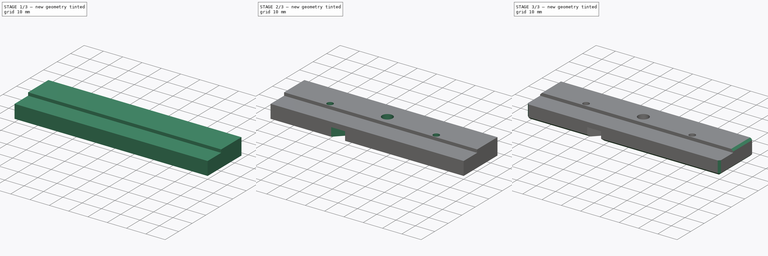
[diagram: build sequence overview — one tinted view per stage of 3, left to right]
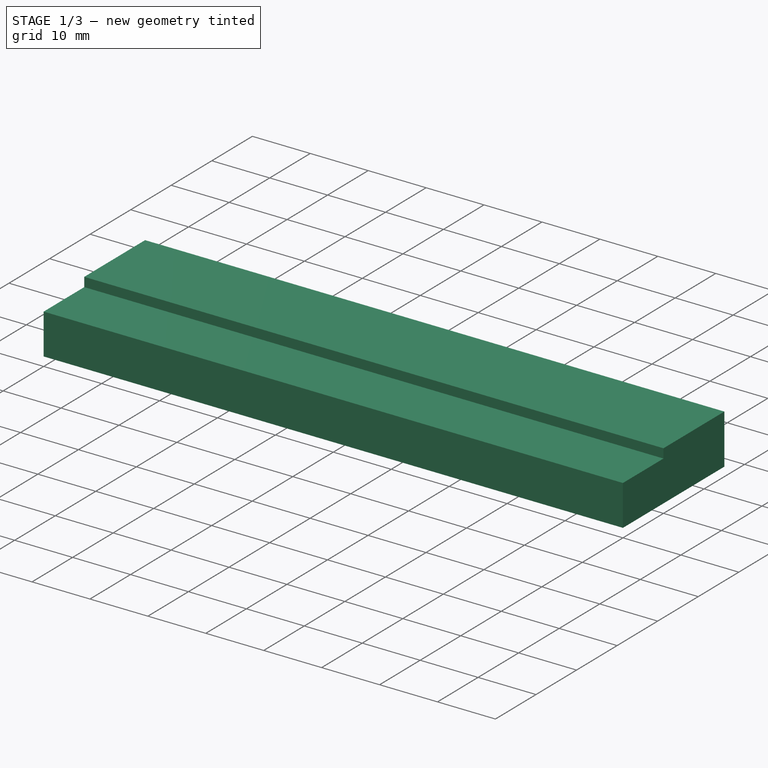
[diagram: stage 1 of 3 — iso view after this stage's code; geometry added in this stage tinted green]
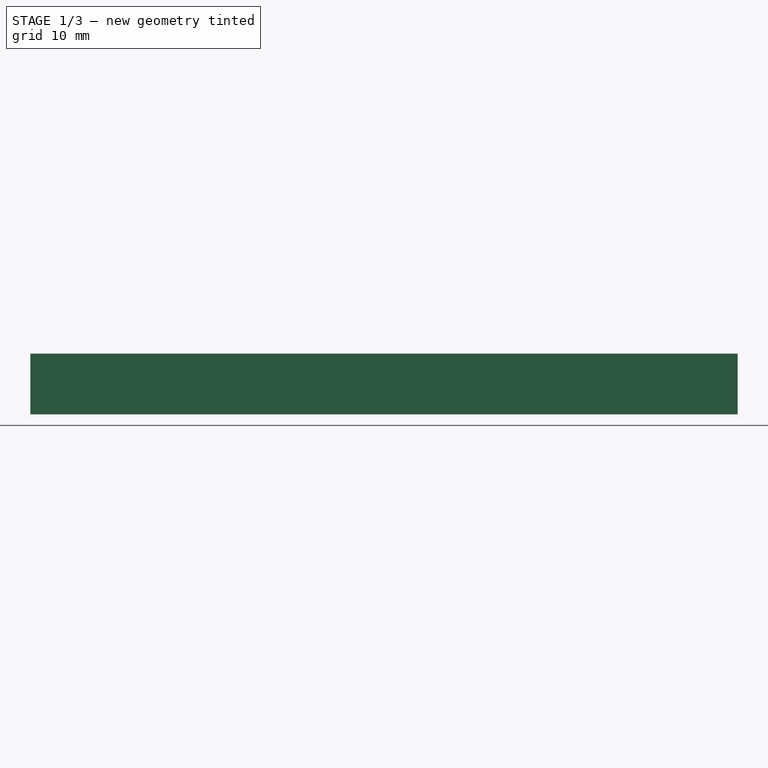
[diagram: stage 1 of 3 — front view after this stage's code; geometry added in this stage tinted green]
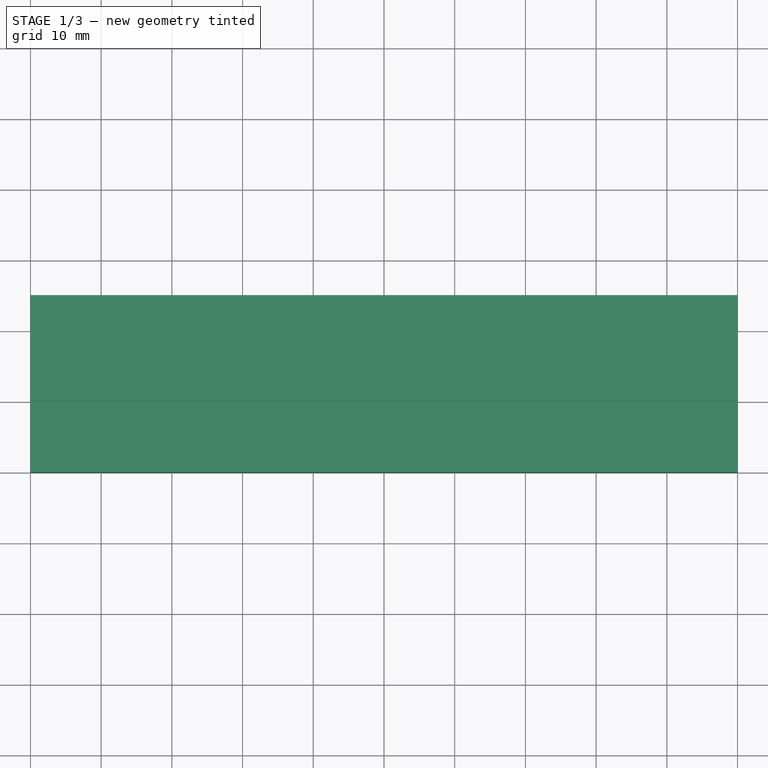
[diagram: stage 1 of 3 — top view after this stage's code; geometry added in this stage tinted green]
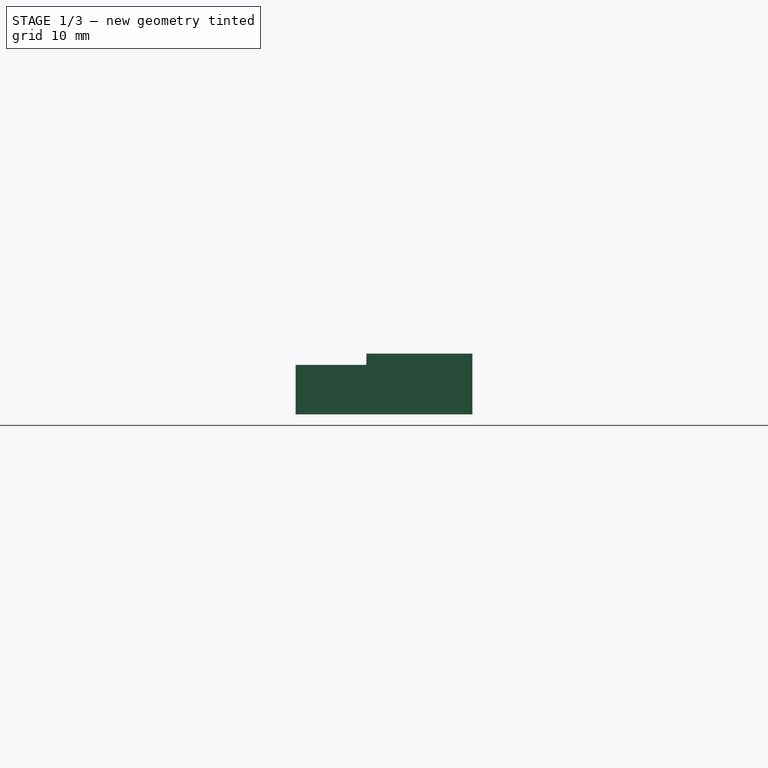
[diagram: stage 1 of 3 — right view after this stage's code; geometry added in this stage tinted green]
FCSTD DOCUMENT  (FreeCAD 0.16R6698 (Git))
Label: pnp board mount slide top
License: All rights reserved
LicenseURL: http://en.wikipedia.org/wiki/All_rights_reserved
objects: Sketcher::SketchObject×6, PartDesign::Pocket×5, PartDesign::Pad×1, PartDesign::Chamfer×1
note: 19 computed .brp shape members not serialized (recipe doc carries the construction recipe); baked Part::Feature solids carry a one-line shape summary decoded from their .brp

FEATURE [Sketcher::SketchObject] Sketch
  sketch-geometry (4):
    g0: LineSegment StartX=0 StartY=25 StartZ=0 EndX=100 EndY=25 EndZ=0
    g1: LineSegment StartX=100 StartY=25 StartZ=0 EndX=100 EndY=0 EndZ=0
    g2: LineSegment StartX=100 StartY=0 StartZ=0 EndX=0 EndY=0 EndZ=0
    g3: LineSegment StartX=0 StartY=0 StartZ=0 EndX=0 EndY=25 EndZ=0
  constraints (11):
    c: Coincident(g0,g1)
    c: Coincident(g1,g2)
    c: Coincident(g2,g3)
    c: Coincident(g3,g0)
    c: Horizontal(g0)
    c: Horizontal(g2)
    c: Vertical(g1)
    c: Vertical(g3)
    c: Coincident(g2,g-1)
    c: DistanceY(g1,g1) = 25
    c: DistanceX(g0,g0) = 100
FEATURE [PartDesign::Pad] Pad
  Length = 8.6
  Length2 = 100
  Sketch = -> Sketch
  Type = 0
FEATURE [Sketcher::SketchObject] Sketch001
  Placement = pos=(0,0,8.6) rot=(0,0,1;0rad)
  Support = -> Pad [Face6]
  sketch-geometry (4):
    g0: LineSegment StartX=-6.18261 StartY=10 StartZ=0 EndX=105 EndY=10 EndZ=0
    g1: LineSegment StartX=105 StartY=10 StartZ=0 EndX=105 EndY=-3.53542 EndZ=0
    g2: LineSegment StartX=105 StartY=-3.53542 StartZ=0 EndX=-6.18261 EndY=-3.53542 EndZ=0
    g3: LineSegment StartX=-6.18261 StartY=-3.53542 StartZ=0 EndX=-6.18261 EndY=10 EndZ=0
  constraints (8):
    c: Coincident(g0,g1)
    c: Coincident(g1,g2)
    c: Coincident(g2,g3)
    c: Coincident(g3,g0)
    c: Horizontal(g0)
    c: Horizontal(g2)
    c: Vertical(g1)
    c: Vertical(g3)
FEATURE [PartDesign::Pocket] Pocket
  Length = 1.6
  Sketch = -> Sketch001
  Type = 0
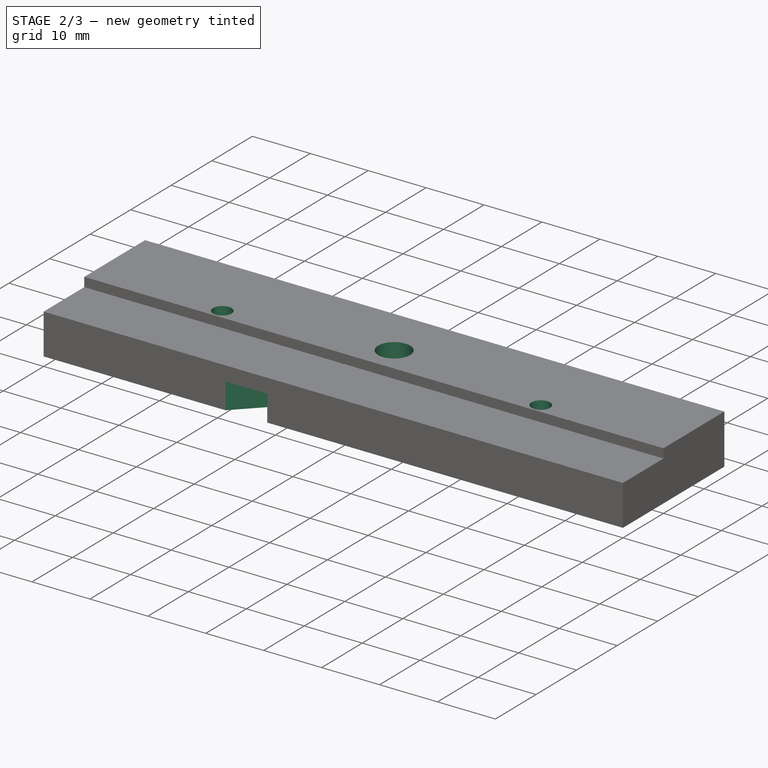
[diagram: stage 2 of 3 — iso view after this stage's code; geometry added in this stage tinted green]
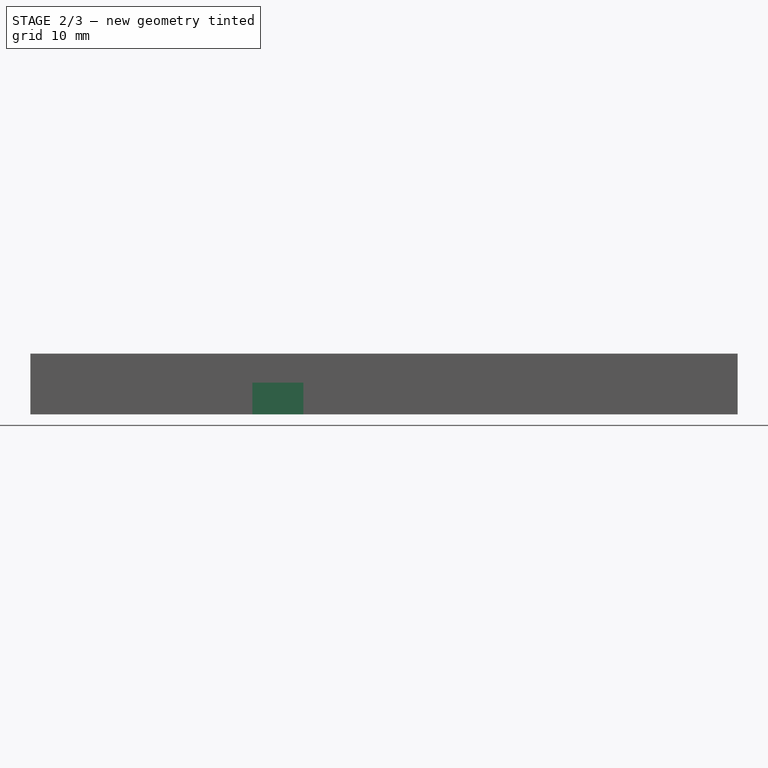
[diagram: stage 2 of 3 — front view after this stage's code; geometry added in this stage tinted green]
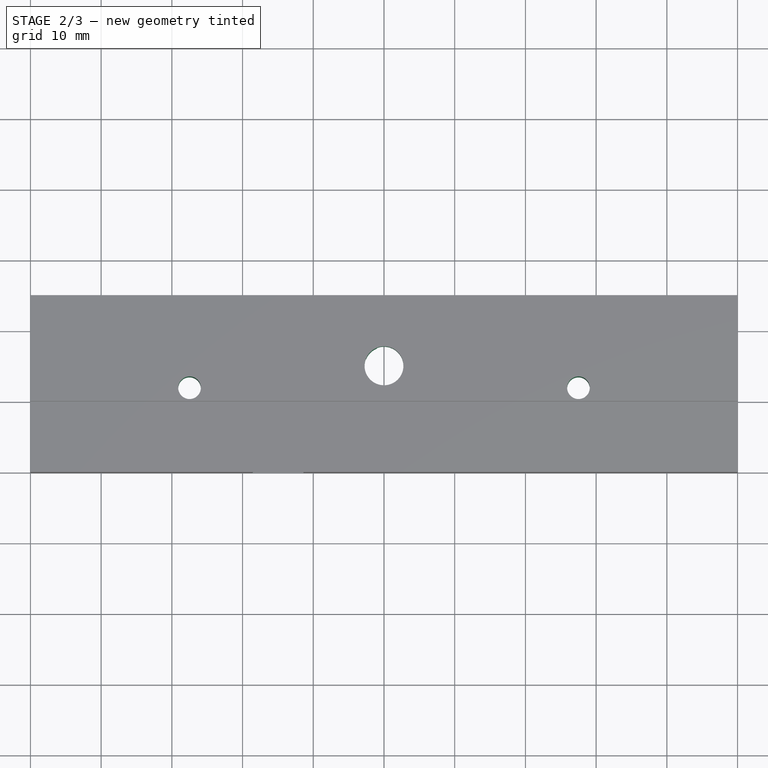
[diagram: stage 2 of 3 — top view after this stage's code; geometry added in this stage tinted green]
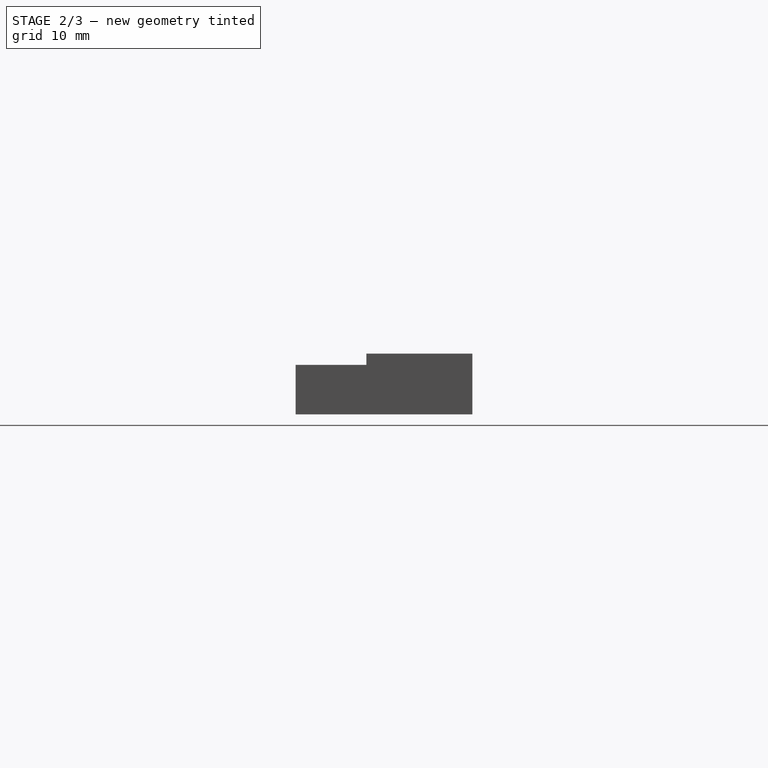
[diagram: stage 2 of 3 — right view after this stage's code; geometry added in this stage tinted green]
FEATURE [Sketcher::SketchObject] Sketch002
  Placement = pos=(0,0,8.6) rot=(0,0,1;0rad)
  Support = -> Pocket [Face5]
  sketch-geometry (2):
    g0: Circle CenterX=50 CenterY=15 CenterZ=0 NormalX=0 NormalY=0 NormalZ=1 Radius=2.75
    g1: Circle [constr] CenterX=50 CenterY=15 CenterZ=0 NormalX=0 NormalY=0 NormalZ=1 Radius=4.25
  constraints (4):
    c: Radius(g0) = 2.75
    c: DistanceX(g-1,g0) = 50
    c: Coincident(g1,g0)
    c: Radius(g1) = 4.25
FEATURE [PartDesign::Pocket] Pocket001
  Length = 5
  Sketch = -> Sketch002
  Type = 1
FEATURE [Sketcher::SketchObject] Sketch003
  Placement = pos=(0,0,0) rot=(1,0,0;3.14159rad)
  Support = -> Pocket001 [Face4]
  sketch-geometry (4):
    g0: ArcOfCircle CenterX=62.5 CenterY=-27.5 CenterZ=0 NormalX=0 NormalY=0 NormalZ=1 Radius=2.55 StartAngle=3.92699 EndAngle=7.06858
    g1: ArcOfCircle CenterX=32.5 CenterY=2.5 CenterZ=0 NormalX=0 NormalY=0 NormalZ=1 Radius=2.55 StartAngle=0.785398 EndAngle=3.92699
    g2: LineSegment StartX=64.3031 StartY=-25.6969 StartZ=0 EndX=34.3031 EndY=4.30312 EndZ=0
    g3: LineSegment StartX=60.6969 StartY=-29.3031 StartZ=0 EndX=30.6969 EndY=0.696878 EndZ=0
  constraints (7):
    c: Tangent(g0,g3) = 1.5708
    c: Tangent(g0,g2) = -1.5708
    c: Tangent(g2,g1) = -1.5708
    c: Tangent(g3,g1) = 1.5708
    c: Equal(g0,g1)
    c: Radius(g1) = 2.55
    c: Angle(g2) = 2.35619
FEATURE [PartDesign::Pocket] Pocket002
  Length = 4.5
  Sketch = -> Sketch003
  Type = 0
FEATURE [Sketcher::SketchObject] Sketch004
  Placement = pos=(0,0,8.6) rot=(0,0,1;0rad)
  Support = -> Pocket002 [Face8]
  sketch-geometry (4):
    g0: Circle CenterX=22.5 CenterY=11.9 CenterZ=0 NormalX=0 NormalY=0 NormalZ=1 Radius=1.6
    g1: Circle [constr] CenterX=22.5 CenterY=11.9 CenterZ=0 NormalX=0 NormalY=0 NormalZ=1 Radius=2.75886
    g2: Circle CenterX=77.5 CenterY=11.9 CenterZ=0 NormalX=0 NormalY=0 NormalZ=1 Radius=1.6
    g3: LineSegment [constr] StartX=50 StartY=27.5 StartZ=0 EndX=50 EndY=-1.88044 EndZ=0
  constraints (6):
    c: Radius(g0) = 1.6
    c: Coincident(g1,g0)
    c: Radius(g2) = 1.6
    c: DistanceY(g-1,g0) = 11.9
    c: DistanceY(g-1,g2) = 11.9
    c: Vertical(g3)
FEATURE [PartDesign::Pocket] Pocket003
  Length = 5
  Sketch = -> Sketch004
  Type = 1
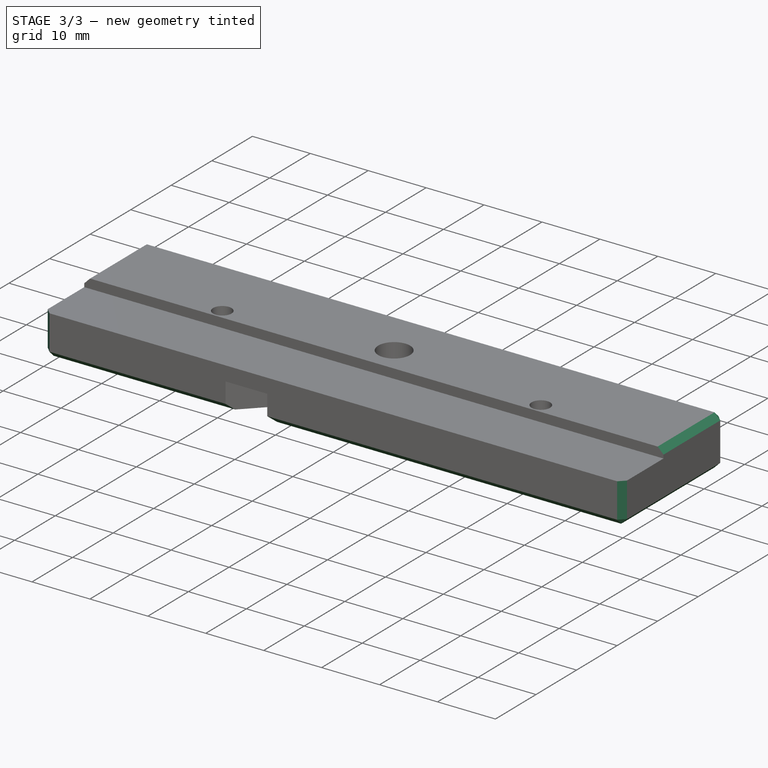
[diagram: stage 3 of 3 — iso view after this stage's code; geometry added in this stage tinted green]
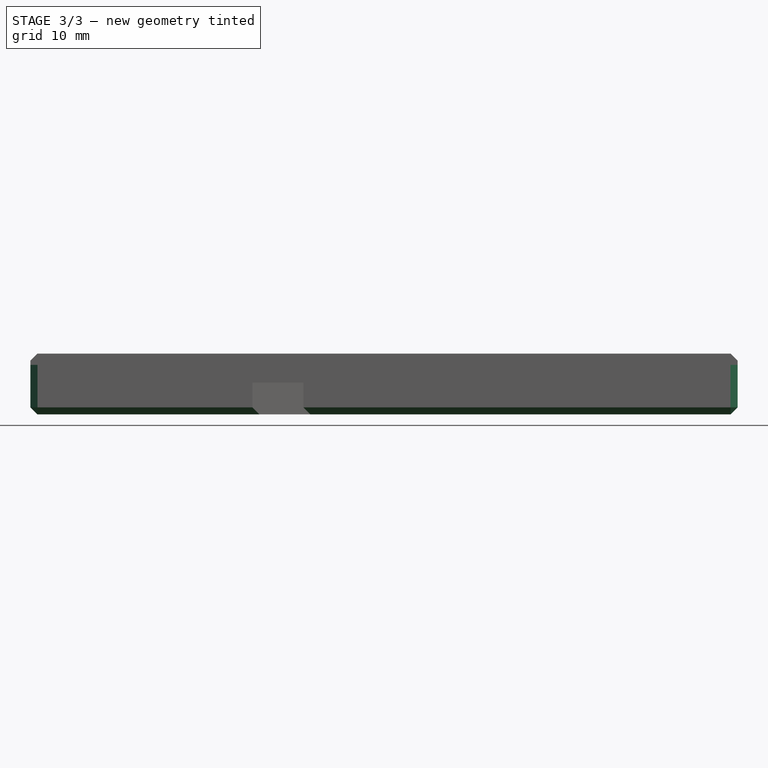
[diagram: stage 3 of 3 — front view after this stage's code; geometry added in this stage tinted green]
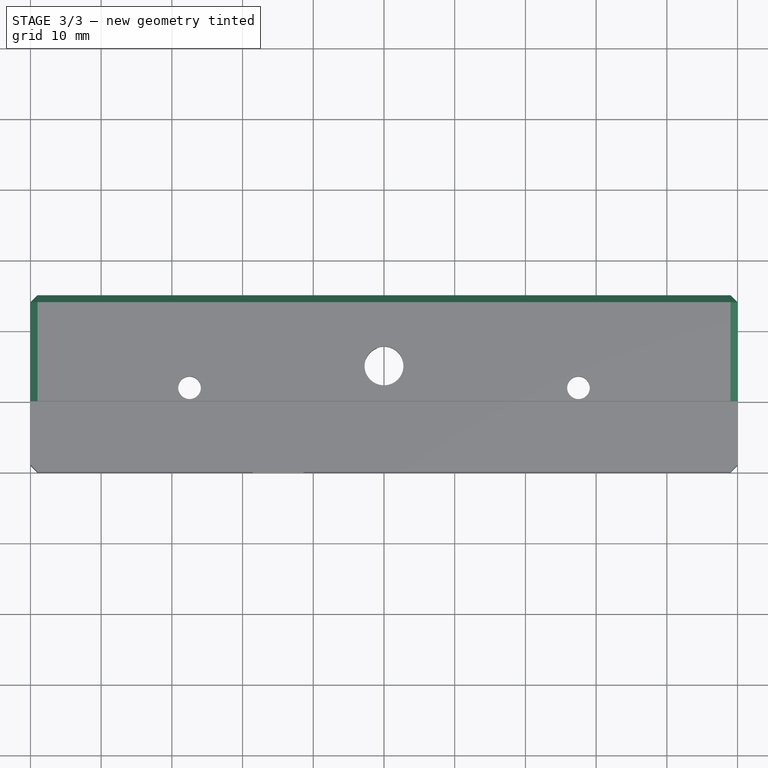
[diagram: stage 3 of 3 — top view after this stage's code; geometry added in this stage tinted green]
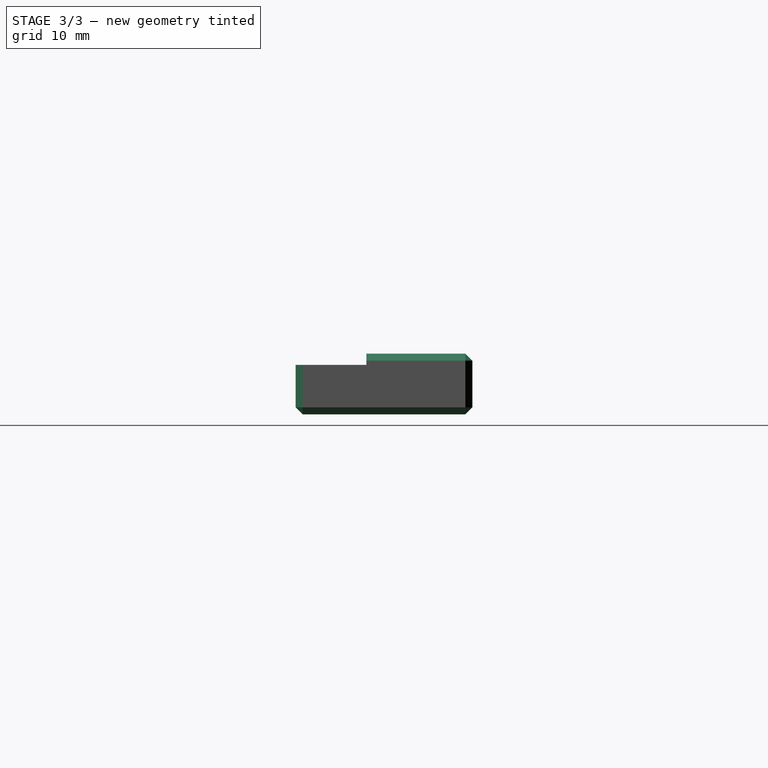
[diagram: stage 3 of 3 — right view after this stage's code; geometry added in this stage tinted green]
FEATURE [Sketcher::SketchObject] Sketch005
  ExternalGeometry = -> [Pocket003]
  Placement = pos=(0,0,0) rot=(1,0,0;3.14159rad)
  Support = -> Pocket003 [Face2]
  sketch-geometry (14):
    g0: LineSegment StartX=25.5149 StartY=-10.7322 StartZ=0 EndX=22.9961 EndY=-8.70513 EndZ=0
    g1: LineSegment StartX=22.9961 StartY=-8.70513 StartZ=0 EndX=19.9812 EndY=-9.8729 EndZ=0
    g2: LineSegment StartX=19.9812 StartY=-9.8729 StartZ=0 EndX=19.4851 EndY=-13.0678 EndZ=0
    g3: LineSegment StartX=19.4851 StartY=-13.0678 StartZ=0 EndX=22.0039 EndY=-15.0949 EndZ=0
    g4: LineSegment StartX=22.0039 StartY=-15.0949 StartZ=0 EndX=25.0188 EndY=-13.9271 EndZ=0
    g5: LineSegment StartX=25.0188 StartY=-13.9271 StartZ=0 EndX=25.5149 EndY=-10.7322 EndZ=0
    g6: Circle [constr] CenterX=22.5 CenterY=-11.9 CenterZ=0 NormalX=0 NormalY=0 NormalZ=1 Radius=3.23316
    g7: LineSegment StartX=80.1717 StartY=-13.7693 StartZ=0 EndX=80.4715 EndY=-10.5501 EndZ=0
    g8: LineSegment StartX=80.4715 StartY=-10.5501 StartZ=0 EndX=77.8335 EndY=-8.68077 EndZ=0
    g9: LineSegment StartX=77.8335 StartY=-8.68077 StartZ=0 EndX=74.8956 EndY=-10.0307 EndZ=0
    g10: LineSegment StartX=74.8956 StartY=-10.0307 StartZ=0 EndX=74.5958 EndY=-13.2499 EndZ=0
    g11: LineSegment StartX=74.5958 StartY=-13.2499 StartZ=0 EndX=77.2338 EndY=-15.1192 EndZ=0
    g12: LineSegment StartX=77.2338 StartY=-15.1192 StartZ=0 EndX=80.1717 EndY=-13.7693 EndZ=0
    g13: Circle [constr] CenterX=77.5337 CenterY=-11.9 CenterZ=0 NormalX=0 NormalY=0 NormalZ=1 Radius=3.23316
  constraints (30):
    c: Coincident(g0,g1)
    c: Coincident(g1,g2)
    c: Coincident(g2,g3)
    c: Coincident(g3,g4)
    c: Coincident(g4,g5)
    c: Coincident(g5,g0)
    c: Equal(g0, g1-g5) x5
    c: PointOnObject(g0,g6)
    c: PointOnObject(g1,g6)
    c: PointOnObject(g2,g6)
    c: PointOnObject(g3,g6)
    c: PointOnObject(g4,g6)
    c: PointOnObject(g5,g6)
    c: Coincident(g6,g-3)
    c: Distance(g1,g0) = 5.6
    c: Coincident(g7,g8)
    c: Coincident(g8,g9)
    c: Coincident(g9,g10)
    c: Coincident(g10,g11)
    c: Coincident(g11,g12)
    c: Coincident(g12,g7)
    c: Equal(g7, g8-g12) x5
    c: PointOnObject(g7,g13)
    c: PointOnObject(g8,g13)
    c: PointOnObject(g9,g13)
    c: PointOnObject(g10,g13)
    c: PointOnObject(g11,g13)
    c: PointOnObject(g12,g13)
    c: DistanceY(g13,g-1) = 11.9
    c: Distance(g9,g7) = 5.6
FEATURE [PartDesign::Pocket] Pocket004
  Length = 5
  Sketch = -> Sketch005
  Type = 0
FEATURE [PartDesign::Chamfer] Chamfer
  Base = -> Pocket004 [Edge11,Edge9,Edge1,Edge5,Edge29,Edge27,Edge6,Edge7,Edge40,Edge37,Edge48,Edge41,Edge8]
  Size = 1
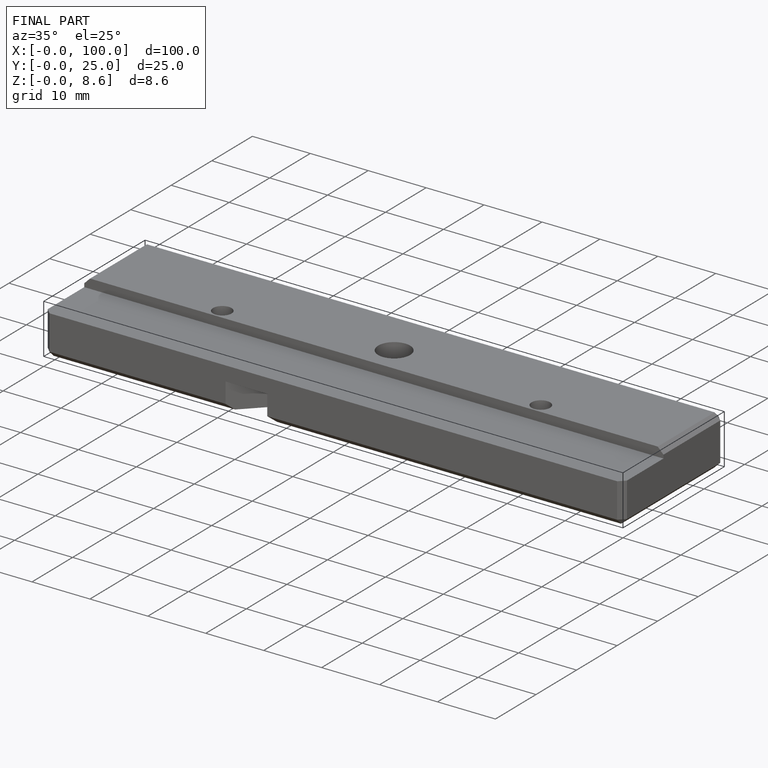
[diagram: finished part — iso view with bounding-box wireframe]
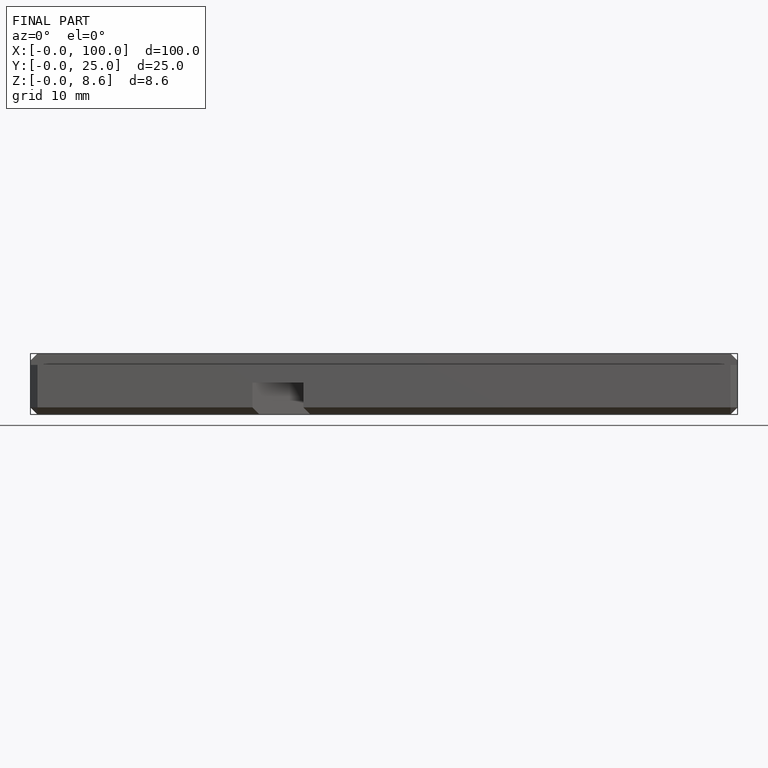
[diagram: finished part — front view with bounding-box wireframe]
